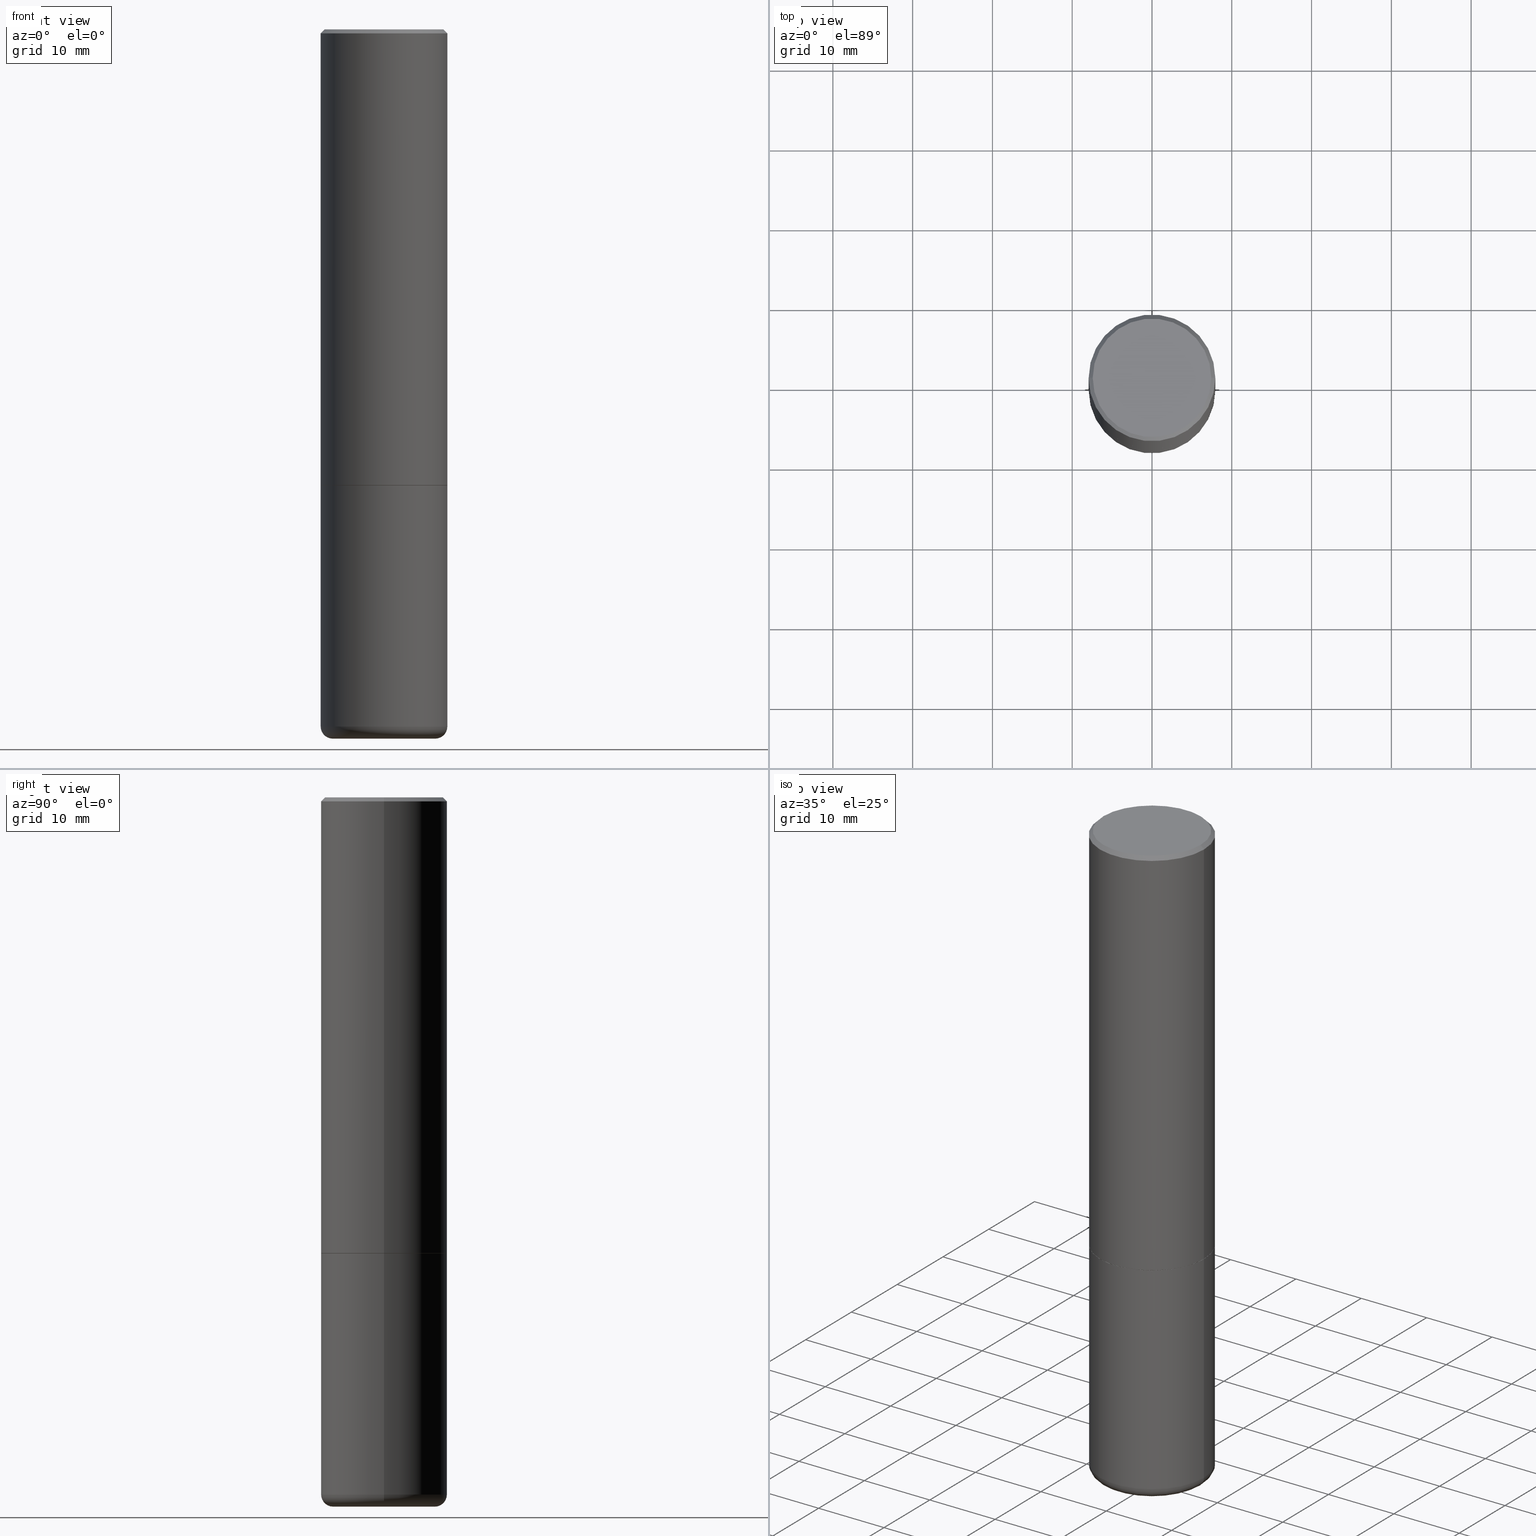
[diagram: canonical four-view strip — front | top / right | iso, engineering-drawing reading convention]
A machine part, canonical four-view strip (front | top / right | iso — engineering-drawing reading convention). The complete STEP part file that produces these views, byte-faithful:
ISO-10303-21;
HEADER;
FILE_DESCRIPTION (( 'STEP AP203' ),
    '1' );
FILE_NAME ('37084.STEP',
    '2024-03-01T19:50:50',
    ( '' ),
    ( '' ),
    'SwSTEP 2.0',
    'SolidWorks 2023',
    '' );
FILE_SCHEMA (( 'CONFIG_CONTROL_DESIGN' ));
ENDSEC;

DATA;
#1 = DIRECTION ( 'NONE',  ( -0.7071067811865957564, 7.493145998870527710E-15, 0.7071067811864992780 ) ) ;
#2 = LOCAL_TIME ( 14, 50, 50.00000000000000000, #113 ) ;
#3 = ORIENTED_EDGE ( 'NONE', *, *, #335, .T. ) ;
#4 = EDGE_CURVE ( 'NONE', #410, #179, #313, .T. ) ;
#5 = CALENDAR_DATE ( 2024, 1, 3 ) ;
#6 = LINE ( 'NONE', #11, #301 ) ;
#7 = PERSON ( 'UNSPECIFIED', 'UNSPECIFIED', 'UNSPECIFIED', ('UNSPECIFIED'), ('UNSPECIFIED'), ('UNSPECIFIED') ) ;
#8 = DIRECTION ( 'NONE',  ( -2.445468806185136597E-29, 3.491481338843145583E-15, 1.000000000000000000 ) ) ;
#9 = CARTESIAN_POINT ( 'NONE',  ( -3.862250233040313002E-45, 5.514269730407654285E-31, 1.579349621337152204E-16 ) ) ;
#10 = DIRECTION ( 'NONE',  ( 1.000000000000000000, -6.982962677686266711E-15, 4.876176775795936353E-29 ) ) ;
#11 = CARTESIAN_POINT ( 'NONE',  ( 0.3125000000000000000, -2.182175836776958347E-15, 1.523805242436230075E-29 ) ) ;
#12 = ADVANCED_FACE ( 'NONE', ( #128 ), #319, .F. ) ;
#13 = VERTEX_POINT ( 'NONE', #121 ) ;
#14 = CC_DESIGN_APPROVAL ( #370, ( #186 ) ) ;
#15 = CARTESIAN_POINT ( 'NONE',  ( 5.499859345110371740E-29, -7.852341531058233864E-15, -2.248999999999999666 ) ) ;
#16 = DIRECTION ( 'NONE',  ( 2.438088387897960049E-29, -3.491481338843145188E-15, -1.000000000000000000 ) ) ;
#17 = FACE_OUTER_BOUND ( 'NONE', #120, .T. ) ;
#18 = LENGTH_MEASURE_WITH_UNIT ( LENGTH_MEASURE( 0.02539999999999999897 ), #109 );
#19 = MANIFOLD_SOLID_BREP ( 'Body-Move/Copy2[2]', #300 ) ;
#20 = AXIS2_PLACEMENT_3D ( 'NONE', #396, #304, #103 ) ;
#21 = VECTOR ( 'NONE', #59, 39.37007874015748143 ) ;
#22 = ADVANCED_FACE ( 'NONE', ( #390 ), #117, .T. ) ;
#23 = CARTESIAN_POINT ( 'NONE',  ( -3.862250233040313002E-45, 5.514269730407654285E-31, 1.579349621337152204E-16 ) ) ;
#24 = CC_DESIGN_PERSON_AND_ORGANIZATION_ASSIGNMENT ( #388, #354, ( #362 ) ) ;
#25 = ORIENTED_EDGE ( 'NONE', *, *, #147, .F. ) ;
#26 = APPROVAL_STATUS ( 'not_yet_approved' ) ;
#27 = ORGANIZATION ( 'UNSPECIFIED', 'UNSPECIFIED', '' ) ;
#28 = EDGE_LOOP ( 'NONE', ( #328, #187, #350, #151 ) ) ;
#29 = CARTESIAN_POINT ( 'NONE',  ( 5.502304813916556222E-29, -7.855833012397076871E-15, -2.249999999999999556 ) ) ;
#30 = COORDINATED_UNIVERSAL_TIME_OFFSET ( 5, 0, .BEHIND. ) ;
#31 = CARTESIAN_POINT ( 'NONE',  ( 5.499859345110371740E-29, -7.852341531058233864E-15, -2.248999999999999666 ) ) ;
#32 = ADVANCED_FACE ( 'NONE', ( #60 ), #363, .T. ) ;
#33 = VERTEX_POINT ( 'NONE', #169 ) ;
#34 = APPROVAL_ROLE ( '' ) ;
#35 = CARTESIAN_POINT ( 'NONE',  ( -0.3114999999999999991, -5.642492390504364798E-15, -2.249999999999999556 ) ) ;
#36 = AXIS2_PLACEMENT_3D ( 'NONE', #9, #93, #292 ) ;
#37 = ORIENTED_EDGE ( 'NONE', *, *, #221, .T. ) ;
#38 = DIRECTION ( 'NONE',  ( 1.000000000000000000, -6.982962677686266711E-15, 4.876176775795936353E-29 ) ) ;
#39 = CARTESIAN_POINT ( 'NONE',  ( 0.000000000000000000, 0.000000000000000000, 0.000000000000000000 ) ) ;
#40 = ADVANCED_FACE ( 'NONE', ( #332 ), #174, .T. ) ;
#41 = CARTESIAN_POINT ( 'NONE',  ( -0.3124999999999998890, 2.112346210000094260E-15, -0.02000000000000006981 ) ) ;
#42 = ORIENTED_EDGE ( 'NONE', *, *, #294, .T. ) ;
#43 = LINE ( 'NONE', #270, #275 ) ;
#44 = CIRCLE ( 'NONE', #52, 0.3125000000000000000 ) ;
#45 = CYLINDRICAL_SURFACE ( 'NONE', #402, 0.3125000000000000000 ) ;
#46 = FACE_OUTER_BOUND ( 'NONE', #286, .T. ) ;
#47 = CARTESIAN_POINT ( 'NONE',  ( 0.000000000000000000, 0.000000000000000000, 0.000000000000000000 ) ) ;
#48 = DIRECTION ( 'NONE',  ( 1.000000000000000000, -6.982962677686269077E-15, 0.000000000000000000 ) ) ;
#49 = PERSON_AND_ORGANIZATION ( #7, #27 ) ;
#50 = ORIENTED_EDGE ( 'NONE', *, *, #335, .F. ) ;
#51 = ORIENTED_EDGE ( 'NONE', *, *, #397, .T. ) ;
#52 = AXIS2_PLACEMENT_3D ( 'NONE', #201, #372, #401 ) ;
#53 = LOCAL_TIME ( 14, 50, 50.00000000000000000, #161 ) ;
#54 = DATE_TIME_ROLE ( 'creation_date' ) ;
#55 = VECTOR ( 'NONE', #1, 39.37007874015748143 ) ;
#56 = DIRECTION ( 'NONE',  ( 1.000000000000000000, -6.982962677686269866E-15, 0.000000000000000000 ) ) ;
#57 = PERSON_AND_ORGANIZATION ( #7, #27 ) ;
#58 = ADVANCED_FACE ( 'NONE', ( #46 ), #45, .T. ) ;
#59 = DIRECTION ( 'NONE',  ( 0.7071067811865957564, -2.468850131082761932E-15, 0.7071067811864992780 ) ) ;
#60 = FACE_OUTER_BOUND ( 'NONE', #165, .T. ) ;
#61 = CARTESIAN_POINT ( 'NONE',  ( 0.000000000000000000, 0.000000000000000000, 0.000000000000000000 ) ) ;
#62 = VERTEX_POINT ( 'NONE', #73 ) ;
#63 = PERSON_AND_ORGANIZATION ( #7, #27 ) ;
#64 = DIRECTION ( 'NONE',  ( -2.445468806185136597E-29, 3.491481338843145583E-15, 1.000000000000000000 ) ) ;
#65 = CONICAL_SURFACE ( 'NONE', #183, 0.3114999999999999991, 0.7853981633975165577 ) ;
#66 = ORIENTED_EDGE ( 'NONE', *, *, #340, .F. ) ;
#67 = ADVANCED_FACE ( 'NONE', ( #269 ), #156, .T. ) ;
#68 = LINE ( 'NONE', #100, #373 ) ;
#69 = ORIENTED_EDGE ( 'NONE', *, *, #231, .F. ) ;
#70 = DIRECTION ( 'NONE',  ( -2.445468806185136597E-29, 3.491481338843145583E-15, 1.000000000000000000 ) ) ;
#71 = FACE_OUTER_BOUND ( 'NONE', #87, .T. ) ;
#72 = DIRECTION ( 'NONE',  ( 1.000000000000000000, -6.982962677686265922E-15, 0.000000000000000000 ) ) ;
#73 = CARTESIAN_POINT ( 'NONE',  ( -0.3125000000000002220, -1.740639529667230767E-15, -2.248999999999999666 ) ) ;
#74 = AXIS2_PLACEMENT_3D ( 'NONE', #61, #64, #38 ) ;
#75 = DIRECTION ( 'NONE',  ( 1.000000000000000000, -6.982962677686265133E-15, 4.873475059489881261E-29 ) ) ;
#76 = CC_DESIGN_PERSON_AND_ORGANIZATION_ASSIGNMENT ( #79, #206, ( #259 ) ) ;
#77 = CARTESIAN_POINT ( 'NONE',  ( 8.559140821647976968E-29, -1.222018468595100934E-14, -3.500000000000000000 ) ) ;
#78 = CC_DESIGN_PERSON_AND_ORGANIZATION_ASSIGNMENT ( #63, #379, ( #186 ) ) ;
#79 = PERSON_AND_ORGANIZATION ( #7, #27 ) ;
#80 = AXIS2_PLACEMENT_3D ( 'NONE', #214, #8, #56 ) ;
#81 = AXIS2_PLACEMENT_3D ( 'NONE', #98, #124, #190 ) ;
#82 = AXIS2_PLACEMENT_3D ( 'NONE', #218, #268, #322 ) ;
#83 = EDGE_LOOP ( 'NONE', ( #411, #213, #321, #85 ) ) ;
#84 = PERSON_AND_ORGANIZATION_ROLE ( 'creator' ) ;
#85 = ORIENTED_EDGE ( 'NONE', *, *, #244, .F. ) ;
#86 = PERSON_AND_ORGANIZATION_ROLE ( 'classification_officer' ) ;
#87 = EDGE_LOOP ( 'NONE', ( #25, #154 ) ) ;
#88 = ADVANCED_FACE ( 'NONE', ( #17 ), #111, .T. ) ;
#89 = CIRCLE ( 'NONE', #290, 0.3114999999999999991 ) ;
#90 = CIRCLE ( 'NONE', #291, 0.3124999999999998890 ) ;
#91 = ORIENTED_EDGE ( 'NONE', *, *, #141, .F. ) ;
#92 = CALENDAR_DATE ( 2024, 1, 3 ) ;
#93 = DIRECTION ( 'NONE',  ( -2.445468806185136597E-29, 3.491481338843145583E-15, 1.000000000000000000 ) ) ;
#94 = ORIENTED_EDGE ( 'NONE', *, *, #147, .T. ) ;
#95 = DATE_TIME_ROLE ( 'classification_date' ) ;
#96 = DIRECTION ( 'NONE',  ( -2.445468806185136597E-29, 3.491481338843145583E-15, 1.000000000000000000 ) ) ;
#97 = EDGE_LOOP ( 'NONE', ( #99, #42, #266, #130 ) ) ;
#98 = CARTESIAN_POINT ( 'NONE',  ( 0.2525000000000000022, -1.377389388173620432E-14, -3.439999999999999947 ) ) ;
#99 = ORIENTED_EDGE ( 'NONE', *, *, #184, .F. ) ;
#100 = CARTESIAN_POINT ( 'NONE',  ( 0.3125000000000000000, -2.182175836776958347E-15, 1.523805242436230075E-29 ) ) ;
#101 = CARTESIAN_POINT ( 'NONE',  ( 4.890937612370289799E-31, -6.982962677686315028E-17, -0.02000000000000006981 ) ) ;
#102 = DIRECTION ( 'NONE',  ( -2.445468806185136597E-29, 3.491481338843145583E-15, 1.000000000000000000 ) ) ;
#103 = DIRECTION ( 'NONE',  ( 1.000000000000000000, -6.982962677686265922E-15, 0.000000000000000000 ) ) ;
#104 = ADVANCED_FACE ( 'NONE', ( #106 ), #235, .T. ) ;
#105 = CARTESIAN_POINT ( 'NONE',  ( 0.000000000000000000, 0.000000000000000000, 0.000000000000000000 ) ) ;
#106 = FACE_OUTER_BOUND ( 'NONE', #359, .T. ) ;
#107 = AXIS2_PLACEMENT_3D ( 'NONE', #31, #327, #153 ) ;
#108 = LINE ( 'NONE', #110, #248 ) ;
#109 =( LENGTH_UNIT ( ) NAMED_UNIT ( * ) SI_UNIT ( $, .METRE. ) );
#110 = CARTESIAN_POINT ( 'NONE',  ( 0.3124999999999998890, -2.213735251080466123E-15, -0.02000000000000006981 ) ) ;
#111 = TOROIDAL_SURFACE ( 'NONE', #215, 0.2525000000000000022, 0.05999999999999995615 ) ;
#112 = CIRCLE ( 'NONE', #352, 0.2924999999999997047 ) ;
#113 = COORDINATED_UNIVERSAL_TIME_OFFSET ( 5, 0, .BEHIND. ) ;
#114 = VERTEX_POINT ( 'NONE', #271 ) ;
#115 = ORIENTED_EDGE ( 'NONE', *, *, #274, .T. ) ;
#116 = ORIENTED_EDGE ( 'NONE', *, *, #176, .F. ) ;
#117 = CONICAL_SURFACE ( 'NONE', #377, 0.3124999999999998890, 0.7853981633974476129 ) ;
#118 = AXIS2_PLACEMENT_3D ( 'NONE', #144, #102, #173 ) ;
#119 = APPROVAL_ROLE ( '' ) ;
#120 = EDGE_LOOP ( 'NONE', ( #384, #280, #196, #250 ) ) ;
#121 = CARTESIAN_POINT ( 'NONE',  ( -0.2924999999999997047, 2.077431396611662611E-15, 1.579349621337007990E-16 ) ) ;
#122 = APPROVAL_DATE_TIME ( #251, #167 ) ;
#123 = CIRCLE ( 'NONE', #243, 0.3124999999999998890 ) ;
#124 = DIRECTION ( 'NONE',  ( -6.982962677686266711E-15, -1.000000000000000000, 3.491481338843145583E-15 ) ) ;
#125 = ORIENTED_EDGE ( 'NONE', *, *, #274, .F. ) ;
#126 = PERSON_AND_ORGANIZATION ( #7, #27 ) ;
#127 = DIRECTION ( 'NONE',  ( -2.445468806185136597E-29, 3.491481338843145583E-15, 1.000000000000000000 ) ) ;
#128 = FACE_OUTER_BOUND ( 'NONE', #211, .T. ) ;
#129 = CARTESIAN_POINT ( 'NONE',  ( 4.890937612370289799E-31, -6.982962677686315028E-17, -0.02000000000000006981 ) ) ;
#130 = ORIENTED_EDGE ( 'NONE', *, *, #265, .F. ) ;
#131 = DIRECTION ( 'NONE',  ( -2.445468806185136597E-29, 3.491481338843145583E-15, 1.000000000000000000 ) ) ;
#132 = CC_DESIGN_APPROVAL ( #167, ( #362 ) ) ;
#133 = ORIENTED_EDGE ( 'NONE', *, *, #351, .F. ) ;
#134 = LINE ( 'NONE', #188, #378 ) ;
#135 = DIRECTION ( 'NONE',  ( -1.000000000000000000, 6.982962677686265922E-15, -4.876176775795935793E-29 ) ) ;
#136 = ADVANCED_FACE ( 'NONE', ( #71 ), #399, .F. ) ;
#137 = FACE_OUTER_BOUND ( 'NONE', #97, .T. ) ;
#138 = DIRECTION ( 'NONE',  ( 1.000000000000000000, -6.982962677686264344E-15, 4.883557194083112340E-29 ) ) ;
#139 =( NAMED_UNIT ( * ) SI_UNIT ( $, .STERADIAN. ) SOLID_ANGLE_UNIT ( ) );
#140 = AXIS2_PLACEMENT_3D ( 'NONE', #164, #70, #398 ) ;
#141 = EDGE_CURVE ( 'NONE', #199, #416, #44, .T. ) ;
#142 = DIRECTION ( 'NONE',  ( 1.000000000000000000, 0.000000000000000000, 0.000000000000000000 ) ) ;
#143 = CARTESIAN_POINT ( 'NONE',  ( 0.000000000000000000, 0.000000000000000000, 0.000000000000000000 ) ) ;
#144 = CARTESIAN_POINT ( 'NONE',  ( 8.412412693276869938E-29, -1.201069580562042103E-14, -3.439999999999999947 ) ) ;
#145 = SECURITY_CLASSIFICATION ( '', '', #193 ) ;
#146 = CC_DESIGN_SECURITY_CLASSIFICATION ( #145, ( #186 ) ) ;
#147 = EDGE_CURVE ( 'NONE', #230, #260, #89, .T. ) ;
#148 = MANIFOLD_SOLID_BREP ( 'Body-Move/Copy2[1]', #323 ) ;
#149 = AXIS2_PLACEMENT_3D ( 'NONE', #404, #306, #371 ) ;
#150 = VERTEX_POINT ( 'NONE', #198 ) ;
#151 = ORIENTED_EDGE ( 'NONE', *, *, #249, .F. ) ;
#152 = COORDINATED_UNIVERSAL_TIME_OFFSET ( 5, 0, .BEHIND. ) ;
#153 = DIRECTION ( 'NONE',  ( 1.000000000000000000, -6.982962677686266711E-15, 0.000000000000000000 ) ) ;
#154 = ORIENTED_EDGE ( 'NONE', *, *, #294, .F. ) ;
#155 = DATE_AND_TIME ( #326, #53 ) ;
#156 = CONICAL_SURFACE ( 'NONE', #20, 0.3114999999999999991, 0.7853981633975165577 ) ;
#157 = CC_DESIGN_APPROVAL ( #202, ( #145 ) ) ;
#158 = DIRECTION ( 'NONE',  ( -2.445468806185136877E-29, 3.491481338843145188E-15, 1.000000000000000000 ) ) ;
#159 = EDGE_LOOP ( 'NONE', ( #50, #353, #247, #296 ) ) ;
#160 = CC_DESIGN_PERSON_AND_ORGANIZATION_ASSIGNMENT ( #126, #84, ( #186 ) ) ;
#161 = COORDINATED_UNIVERSAL_TIME_OFFSET ( 5, 0, .BEHIND. ) ;
#162 = FACE_OUTER_BOUND ( 'NONE', #83, .T. ) ;
#163 = DIRECTION ( 'NONE',  ( -2.445468806185136597E-29, 3.491481338843145583E-15, 1.000000000000000000 ) ) ;
#164 = CARTESIAN_POINT ( 'NONE',  ( 8.412412693276869938E-29, -1.201069580562042103E-14, -3.439999999999999947 ) ) ;
#165 = EDGE_LOOP ( 'NONE', ( #51, #37, #133, #299 ) ) ;
#166 = CARTESIAN_POINT ( 'NONE',  ( 0.3114999999999999991, -1.003102588649634920E-14, -2.249999999999999556 ) ) ;
#167 = APPROVAL ( #253, 'UNSPECIFIED' ) ;
#168 = AXIS2_PLACEMENT_3D ( 'NONE', #374, #171, #376 ) ;
#169 = CARTESIAN_POINT ( 'NONE',  ( 0.3125000000000002220, -1.003451736783519379E-14, -2.248999999999999666 ) ) ;
#170 = DIRECTION ( 'NONE',  ( -1.000000000000000000, 6.982962677686266711E-15, 0.000000000000000000 ) ) ;
#171 = DIRECTION ( 'NONE',  ( -2.445468806185136597E-29, 3.491481338843145583E-15, 1.000000000000000000 ) ) ;
#172 = DIRECTION ( 'NONE',  ( 1.000000000000000000, -6.982962677686265922E-15, 4.876176775795935793E-29 ) ) ;
#173 = DIRECTION ( 'NONE',  ( 1.000000000000000000, -6.982962677686269077E-15, 0.000000000000000000 ) ) ;
#174 = CONICAL_SURFACE ( 'NONE', #255, 0.3124999999999998890, 0.7853981633974476129 ) ;
#175 = VECTOR ( 'NONE', #386, 39.37007874015748143 ) ;
#176 = EDGE_CURVE ( 'NONE', #33, #62, #346, .T. ) ;
#177 =( NAMED_UNIT ( * ) PLANE_ANGLE_UNIT ( ) SI_UNIT ( $, .RADIAN. ) );
#178 = CARTESIAN_POINT ( 'NONE',  ( 0.3124999999999998890, -2.213735251080466123E-15, -0.02000000000000006981 ) ) ;
#179 = VERTEX_POINT ( 'NONE', #302 ) ;
#180 = DESIGN_CONTEXT ( 'detailed design', #367, 'design' ) ;
#181 = EDGE_CURVE ( 'NONE', #13, #252, #134, .T. ) ;
#182 = ORIENTED_EDGE ( 'NONE', *, *, #4, .F. ) ;
#183 = AXIS2_PLACEMENT_3D ( 'NONE', #400, #312, #72 ) ;
#184 = EDGE_CURVE ( 'NONE', #260, #62, #331, .T. ) ;
#185 = COORDINATED_UNIVERSAL_TIME_OFFSET ( 5, 0, .BEHIND. ) ;
#186 = PRODUCT_DEFINITION_FORMATION_WITH_SPECIFIED_SOURCE ( 'ANY', '', #259, .NOT_KNOWN. ) ;
#187 = ORIENTED_EDGE ( 'NONE', *, *, #4, .T. ) ;
#188 = CARTESIAN_POINT ( 'NONE',  ( -0.3124999999999998890, 2.112346210000094260E-15, -0.02000000000000006981 ) ) ;
#189 = EDGE_LOOP ( 'NONE', ( #94, #293, #116, #281 ) ) ;
#190 = DIRECTION ( 'NONE',  ( 1.000000000000000000, -6.982962677686274599E-15, 0.000000000000000000 ) ) ;
#191 = ADVANCED_FACE ( 'NONE', ( #162 ), #200, .T. ) ;
#192 = ORIENTED_EDGE ( 'NONE', *, *, #244, .T. ) ;
#193 = SECURITY_CLASSIFICATION_LEVEL ( 'unclassified' ) ;
#194 = CIRCLE ( 'NONE', #36, 0.2924999999999997047 ) ;
#195 = LINE ( 'NONE', #166, #21 ) ;
#196 = ORIENTED_EDGE ( 'NONE', *, *, #397, .F. ) ;
#197 = DIMENSIONAL_EXPONENTS ( 1.000000000000000000, 0.000000000000000000, 0.000000000000000000, 0.000000000000000000, 0.000000000000000000, 0.000000000000000000, 0.000000000000000000 ) ;
#198 = CARTESIAN_POINT ( 'NONE',  ( 0.3125000000000000000, -1.419287164239737937E-14, -3.439999999999999947 ) ) ;
#199 = VERTEX_POINT ( 'NONE', #394 ) ;
#200 = CYLINDRICAL_SURFACE ( 'NONE', #74, 0.3125000000000000000 ) ;
#201 = CARTESIAN_POINT ( 'NONE',  ( 5.502304813916556222E-29, -7.855833012397076871E-15, -2.249999999999999556 ) ) ;
#202 = APPROVAL ( #216, 'UNSPECIFIED' ) ;
#203 = LOCAL_TIME ( 14, 50, 50.00000000000000000, #185 ) ;
#204 = CARTESIAN_POINT ( 'NONE',  ( 5.502304813916556222E-29, -7.855833012397076871E-15, -2.249999999999999556 ) ) ;
#205 = DIRECTION ( 'NONE',  ( 0.000000000000000000, 0.000000000000000000, 1.000000000000000000 ) ) ;
#206 = PERSON_AND_ORGANIZATION_ROLE ( 'design_owner' ) ;
#207 = APPLICATION_PROTOCOL_DEFINITION ( 'international standard', 'config_control_design', 1994, #367 ) ;
#208 = EDGE_CURVE ( 'NONE', #62, #252, #43, .T. ) ;
#209 = AXIS2_PLACEMENT_3D ( 'NONE', #29, #287, #418 ) ;
#210 = AXIS2_PLACEMENT_3D ( 'NONE', #15, #96, #391 ) ;
#211 = EDGE_LOOP ( 'NONE', ( #345, #223 ) ) ;
#212 = APPROVAL_DATE_TIME ( #155, #202 ) ;
#213 = ORIENTED_EDGE ( 'NONE', *, *, #208, .T. ) ;
#214 = CARTESIAN_POINT ( 'NONE',  ( 8.559140821647976968E-29, -1.222018468595100934E-14, -3.500000000000000000 ) ) ;
#215 = AXIS2_PLACEMENT_3D ( 'NONE', #336, #369, #138 ) ;
#216 = APPROVAL_STATUS ( 'not_yet_approved' ) ;
#217 = CIRCLE ( 'NONE', #149, 0.05999999999999994227 ) ;
#218 = CARTESIAN_POINT ( 'NONE',  ( 2.042516583223230567E-15, 0.2924999999999997047, -9.422908105447613343E-16 ) ) ;
#219 = EDGE_LOOP ( 'NONE', ( #66, #69, #392, #115 ) ) ;
#220 = DATE_AND_TIME ( #285, #333 ) ;
#221 = EDGE_CURVE ( 'NONE', #114, #199, #329, .T. ) ;
#222 = FACE_OUTER_BOUND ( 'NONE', #414, .T. ) ;
#223 = ORIENTED_EDGE ( 'NONE', *, *, #141, .T. ) ;
#224 = APPROVAL_ROLE ( '' ) ;
#225 = PRODUCT_RELATED_PRODUCT_CATEGORY ( 'detail', '', ( #259 ) ) ;
#226 = DIRECTION ( 'NONE',  ( 1.000000000000000000, -6.982962677686269866E-15, 0.000000000000000000 ) ) ;
#227 = DIRECTION ( 'NONE',  ( -1.000000000000000000, 6.982962677686266711E-15, 0.000000000000000000 ) ) ;
#228 = CIRCLE ( 'NONE', #364, 0.3125000000000000000 ) ;
#229 = CARTESIAN_POINT ( 'NONE',  ( 5.502304813916556222E-29, -7.855833012397076871E-15, -2.249999999999999556 ) ) ;
#230 = VERTEX_POINT ( 'NONE', #355 ) ;
#231 = EDGE_CURVE ( 'NONE', #13, #324, #194, .T. ) ;
#232 = DIRECTION ( 'NONE',  ( -2.445468806185136877E-29, 3.491481338843145188E-15, 1.000000000000000000 ) ) ;
#233 = DIRECTION ( 'NONE',  ( -2.445468806185136597E-29, 3.491481338843145583E-15, 1.000000000000000000 ) ) ;
#234 = DIRECTION ( 'NONE',  ( -2.445468806185136597E-29, 3.491481338843145583E-15, 1.000000000000000000 ) ) ;
#235 = PLANE ( 'NONE',  #236 ) ;
#236 = AXIS2_PLACEMENT_3D ( 'NONE', #77, #16, #135 ) ;
#237 = CIRCLE ( 'NONE', #118, 0.3125000000000000000 ) ;
#238 = DIRECTION ( 'NONE',  ( 2.445468806185136597E-29, -3.491481338843145583E-15, -1.000000000000000000 ) ) ;
#239 = APPLICATION_PROTOCOL_DEFINITION ( 'international standard', 'config_control_design', 1994, #297 ) ;
#240 = ADVANCED_FACE ( 'NONE', ( #222 ), #320, .F. ) ;
#241 =( CONVERSION_BASED_UNIT ( 'INCH', #18 ) LENGTH_UNIT ( ) NAMED_UNIT ( #197 ) );
#242 = FACE_OUTER_BOUND ( 'NONE', #28, .T. ) ;
#243 = AXIS2_PLACEMENT_3D ( 'NONE', #129, #358, #288 ) ;
#244 = EDGE_CURVE ( 'NONE', #33, #387, #6, .T. ) ;
#245 = DATE_AND_TIME ( #417, #2 ) ;
#246 = ORIENTED_EDGE ( 'NONE', *, *, #249, .T. ) ;
#247 = ORIENTED_EDGE ( 'NONE', *, *, #315, .T. ) ;
#248 = VECTOR ( 'NONE', #343, 39.37007874015748854 ) ;
#249 = EDGE_CURVE ( 'NONE', #114, #150, #403, .T. ) ;
#250 = ORIENTED_EDGE ( 'NONE', *, *, #282, .F. ) ;
#251 = DATE_AND_TIME ( #5, #317 ) ;
#252 = VERTEX_POINT ( 'NONE', #41 ) ;
#253 = APPROVAL_STATUS ( 'not_yet_approved' ) ;
#254 = CARTESIAN_POINT ( 'NONE',  ( 4.890937612370289799E-31, -6.982962677686315028E-17, -0.02000000000000006981 ) ) ;
#255 = AXIS2_PLACEMENT_3D ( 'NONE', #101, #238, #170 ) ;
#256 = EDGE_CURVE ( 'NONE', #230, #33, #195, .T. ) ;
#257 = APPROVAL_PERSON_ORGANIZATION ( #408, #202, #119 ) ;
#258 = CARTESIAN_POINT ( 'NONE',  ( -0.3125000000000000000, 2.220446049250313081E-15, -1.537167215704658232E-29 ) ) ;
#259 = PRODUCT ( '37084', '37084', '', ( #309 ) ) ;
#260 = VERTEX_POINT ( 'NONE', #295 ) ;
#261 = DATE_AND_TIME ( #92, #203 ) ;
#262 = DIRECTION ( 'NONE',  ( 1.000000000000000000, -6.982962677686265922E-15, 0.000000000000000000 ) ) ;
#263 = ORIENTED_EDGE ( 'NONE', *, *, #265, .T. ) ;
#264 = DIRECTION ( 'NONE',  ( -0.7071067811865469066, 2.468850131082251144E-15, -0.7071067811865479058 ) ) ;
#265 = EDGE_CURVE ( 'NONE', #62, #33, #407, .T. ) ;
#266 = ORIENTED_EDGE ( 'NONE', *, *, #256, .T. ) ;
#267 = APPROVAL_PERSON_ORGANIZATION ( #49, #167, #224 ) ;
#268 = DIRECTION ( 'NONE',  ( 2.438088387897960049E-29, -3.491481338843145188E-15, -1.000000000000000000 ) ) ;
#269 = FACE_OUTER_BOUND ( 'NONE', #189, .T. ) ;
#270 = CARTESIAN_POINT ( 'NONE',  ( -0.3125000000000000000, 2.220446049250313081E-15, -1.537167215704658232E-29 ) ) ;
#271 = CARTESIAN_POINT ( 'NONE',  ( -0.3125000000000000000, -9.790249756370107944E-15, -3.439999999999999947 ) ) ;
#272 = CARTESIAN_POINT ( 'NONE',  ( -0.2525000000000000022, -1.010815701726343156E-14, -3.500000000000000000 ) ) ;
#273 = CARTESIAN_POINT ( 'NONE',  ( 5.502304813916556222E-29, -7.855833012397076871E-15, -2.249999999999999556 ) ) ;
#274 = EDGE_CURVE ( 'NONE', #252, #387, #123, .T. ) ;
#275 = VECTOR ( 'NONE', #158, 39.37007874015748143 ) ;
#276 = CIRCLE ( 'NONE', #381, 0.2525000000000000022 ) ;
#277 = FACE_OUTER_BOUND ( 'NONE', #289, .T. ) ;
#278 = DIRECTION ( 'NONE',  ( -2.445468806185136597E-29, 3.491481338843145583E-15, 1.000000000000000000 ) ) ;
#279 = APPROVAL_PERSON_ORGANIZATION ( #415, #370, #34 ) ;
#280 = ORIENTED_EDGE ( 'NONE', *, *, #409, .T. ) ;
#281 = ORIENTED_EDGE ( 'NONE', *, *, #256, .F. ) ;
#282 = EDGE_CURVE ( 'NONE', #179, #150, #393, .T. ) ;
#283 = AXIS2_PLACEMENT_3D ( 'NONE', #273, #307, #172 ) ;
#284 = AXIS2_PLACEMENT_3D ( 'NONE', #105, #334, #405 ) ;
#285 = CALENDAR_DATE ( 2024, 1, 3 ) ;
#286 = EDGE_LOOP ( 'NONE', ( #344, #246, #366, #91 ) ) ;
#287 = DIRECTION ( 'NONE',  ( 2.438088387897960049E-29, -3.491481338843145188E-15, -1.000000000000000000 ) ) ;
#288 = DIRECTION ( 'NONE',  ( 1.000000000000000000, -6.982962677686266711E-15, 0.000000000000000000 ) ) ;
#289 = EDGE_LOOP ( 'NONE', ( #330, #263, #192, #125 ) ) ;
#290 = AXIS2_PLACEMENT_3D ( 'NONE', #204, #375, #338 ) ;
#291 = AXIS2_PLACEMENT_3D ( 'NONE', #365, #131, #361 ) ;
#292 = DIRECTION ( 'NONE',  ( 1.000000000000000000, -6.982962677686265133E-15, 4.873475059489881261E-29 ) ) ;
#293 = ORIENTED_EDGE ( 'NONE', *, *, #184, .T. ) ;
#294 = EDGE_CURVE ( 'NONE', #260, #230, #413, .T. ) ;
#295 = CARTESIAN_POINT ( 'NONE',  ( -0.3114999999999999991, -5.637193936156142396E-15, -2.249999999999999556 ) ) ;
#296 = ORIENTED_EDGE ( 'NONE', *, *, #181, .F. ) ;
#297 = APPLICATION_CONTEXT ( 'configuration controlled 3d designs of mechanical parts and assemblies' ) ;
#298 = CARTESIAN_POINT ( 'NONE',  ( 8.559140821647976968E-29, -1.222018468595100934E-14, -3.500000000000000000 ) ) ;
#299 = ORIENTED_EDGE ( 'NONE', *, *, #318, .F. ) ;
#300 = CLOSED_SHELL ( 'NONE', ( #67, #191, #40, #22, #412, #380, #136, #240 ) ) ;
#301 = VECTOR ( 'NONE', #232, 39.37007874015748143 ) ;
#302 = CARTESIAN_POINT ( 'NONE',  ( 0.2525000000000000022, -1.398338276206679106E-14, -3.500000000000000000 ) ) ;
#303 = DIRECTION ( 'NONE',  ( 1.000000000000000000, -6.982962677686266711E-15, 4.876176775795936353E-29 ) ) ;
#304 = DIRECTION ( 'NONE',  ( -2.445468806185136597E-29, 3.491481338843145583E-15, 1.000000000000000000 ) ) ;
#305 = EDGE_CURVE ( 'NONE', #179, #410, #276, .T. ) ;
#306 = DIRECTION ( 'NONE',  ( 7.105427357601001859E-15, 1.000000000000000000, -3.491481338843145583E-15 ) ) ;
#307 = DIRECTION ( 'NONE',  ( -2.438088387897960049E-29, 3.491481338843145188E-15, 1.000000000000000000 ) ) ;
#308 = TOROIDAL_SURFACE ( 'NONE', #168, 0.2525000000000000022, 0.05999999999999995615 ) ;
#309 = MECHANICAL_CONTEXT ( 'NONE', #297, 'mechanical' ) ;
#310 = CARTESIAN_POINT ( 'NONE',  ( 0.2924999999999997047, -2.110215457714317959E-15, 1.579349621337297404E-16 ) ) ;
#311 = UNCERTAINTY_MEASURE_WITH_UNIT (LENGTH_MEASURE( 1.000000000000000082E-05 ), #241, 'distance_accuracy_value', 'NONE');
#312 = DIRECTION ( 'NONE',  ( -2.445468806185136597E-29, 3.491481338843145583E-15, 1.000000000000000000 ) ) ;
#313 = CIRCLE ( 'NONE', #80, 0.2525000000000000022 ) ;
#314 = ORIENTED_EDGE ( 'NONE', *, *, #231, .T. ) ;
#315 = EDGE_CURVE ( 'NONE', #387, #252, #90, .T. ) ;
#316 = AXIS2_PLACEMENT_3D ( 'NONE', #39, #163, #10 ) ;
#317 = LOCAL_TIME ( 14, 50, 50.00000000000000000, #30 ) ;
#318 = EDGE_CURVE ( 'NONE', #150, #416, #68, .T. ) ;
#319 = PLANE ( 'NONE',  #209 ) ;
#320 = PLANE ( 'NONE',  #82 ) ;
#321 = ORIENTED_EDGE ( 'NONE', *, *, #315, .F. ) ;
#322 = DIRECTION ( 'NONE',  ( -1.000000000000000000, 6.982962677686265922E-15, -4.876176775795935793E-29 ) ) ;
#323 = CLOSED_SHELL ( 'NONE', ( #32, #88, #12, #58, #382, #104 ) ) ;
#324 = VERTEX_POINT ( 'NONE', #310 ) ;
#325 = AXIS2_PLACEMENT_3D ( 'NONE', #229, #127, #262 ) ;
#326 = CALENDAR_DATE ( 2024, 1, 3 ) ;
#327 = DIRECTION ( 'NONE',  ( -2.445468806185136597E-29, 3.491481338843145583E-15, 1.000000000000000000 ) ) ;
#328 = ORIENTED_EDGE ( 'NONE', *, *, #409, .F. ) ;
#329 = LINE ( 'NONE', #258, #175 ) ;
#330 = ORIENTED_EDGE ( 'NONE', *, *, #208, .F. ) ;
#331 = LINE ( 'NONE', #35, #55 ) ;
#332 = FACE_OUTER_BOUND ( 'NONE', #159, .T. ) ;
#333 = LOCAL_TIME ( 14, 50, 50.00000000000000000, #152 ) ;
#334 = DIRECTION ( 'NONE',  ( -2.445468806185136597E-29, 3.491481338843145583E-15, 1.000000000000000000 ) ) ;
#335 = EDGE_CURVE ( 'NONE', #324, #13, #112, .T. ) ;
#336 = CARTESIAN_POINT ( 'NONE',  ( 8.412412693276869938E-29, -1.201069580562042103E-14, -3.439999999999999947 ) ) ;
#337 = CARTESIAN_POINT ( 'NONE',  ( 0.3125000000000000000, -1.003800884917403522E-14, -2.249999999999999556 ) ) ;
#338 = DIRECTION ( 'NONE',  ( 1.000000000000000000, -6.982962677686265922E-15, 0.000000000000000000 ) ) ;
#339 = CARTESIAN_POINT ( 'NONE',  ( 5.502304813916556222E-29, -7.855833012397076871E-15, -2.249999999999999556 ) ) ;
#340 = EDGE_CURVE ( 'NONE', #324, #387, #108, .T. ) ;
#341 =( GEOMETRIC_REPRESENTATION_CONTEXT ( 3 ) GLOBAL_UNCERTAINTY_ASSIGNED_CONTEXT ( ( #311 ) ) GLOBAL_UNIT_ASSIGNED_CONTEXT ( ( #241, #177, #139 ) ) REPRESENTATION_CONTEXT ( 'NONE', 'WORKASPACE' ) );
#342 = CYLINDRICAL_SURFACE ( 'NONE', #284, 0.3125000000000000000 ) ;
#343 = DIRECTION ( 'NONE',  ( 0.7071067811865469066, -7.319954787623252890E-15, -0.7071067811865479058 ) ) ;
#344 = ORIENTED_EDGE ( 'NONE', *, *, #221, .F. ) ;
#345 = ORIENTED_EDGE ( 'NONE', *, *, #351, .T. ) ;
#346 = CIRCLE ( 'NONE', #210, 0.3125000000000002220 ) ;
#347 = CC_DESIGN_DATE_AND_TIME_ASSIGNMENT ( #245, #54, ( #362 ) ) ;
#348 = AXIS2_PLACEMENT_3D ( 'NONE', #143, #205, #142 ) ;
#349 = CC_DESIGN_DATE_AND_TIME_ASSIGNMENT ( #261, #95, ( #145 ) ) ;
#350 = ORIENTED_EDGE ( 'NONE', *, *, #282, .T. ) ;
#351 = EDGE_CURVE ( 'NONE', #416, #199, #228, .T. ) ;
#352 = AXIS2_PLACEMENT_3D ( 'NONE', #23, #234, #75 ) ;
#353 = ORIENTED_EDGE ( 'NONE', *, *, #340, .T. ) ;
#354 = PERSON_AND_ORGANIZATION_ROLE ( 'creator' ) ;
#355 = CARTESIAN_POINT ( 'NONE',  ( 0.3114999999999999991, -1.003102588649634920E-14, -2.249999999999999556 ) ) ;
#356 = DIRECTION ( 'NONE',  ( 2.445468806185136597E-29, -3.491481338843145583E-15, -1.000000000000000000 ) ) ;
#357 = ADVANCED_BREP_SHAPE_REPRESENTATION ( '37084', ( #148, #19, #348 ), #341 ) ;
#358 = DIRECTION ( 'NONE',  ( -2.445468806185136597E-29, 3.491481338843145583E-15, 1.000000000000000000 ) ) ;
#359 = EDGE_LOOP ( 'NONE', ( #385, #182 ) ) ;
#360 = SHAPE_DEFINITION_REPRESENTATION ( #395, #357 ) ;
#361 = DIRECTION ( 'NONE',  ( 1.000000000000000000, -6.982962677686266711E-15, 0.000000000000000000 ) ) ;
#362 = PRODUCT_DEFINITION ( 'UNKNOWN', '', #186, #180 ) ;
#363 = CYLINDRICAL_SURFACE ( 'NONE', #316, 0.3125000000000000000 ) ;
#364 = AXIS2_PLACEMENT_3D ( 'NONE', #339, #278, #48 ) ;
#365 = CARTESIAN_POINT ( 'NONE',  ( 4.890937612370289799E-31, -6.982962677686315028E-17, -0.02000000000000006981 ) ) ;
#366 = ORIENTED_EDGE ( 'NONE', *, *, #318, .T. ) ;
#367 = APPLICATION_CONTEXT ( 'configuration controlled 3d designs of mechanical parts and assemblies' ) ;
#368 = DIRECTION ( 'NONE',  ( -2.445468806185136877E-29, 3.491481338843145188E-15, 1.000000000000000000 ) ) ;
#369 = DIRECTION ( 'NONE',  ( -2.445468806185136597E-29, 3.491481338843145583E-15, 1.000000000000000000 ) ) ;
#370 = APPROVAL ( #26, 'UNSPECIFIED' ) ;
#371 = DIRECTION ( 'NONE',  ( -1.000000000000000000, 7.105427357600997914E-15, 0.000000000000000000 ) ) ;
#372 = DIRECTION ( 'NONE',  ( -2.445468806185136597E-29, 3.491481338843145583E-15, 1.000000000000000000 ) ) ;
#373 = VECTOR ( 'NONE', #368, 39.37007874015748143 ) ;
#374 = CARTESIAN_POINT ( 'NONE',  ( 8.412412693276869938E-29, -1.201069580562042103E-14, -3.439999999999999947 ) ) ;
#375 = DIRECTION ( 'NONE',  ( -2.445468806185136597E-29, 3.491481338843145583E-15, 1.000000000000000000 ) ) ;
#376 = DIRECTION ( 'NONE',  ( 1.000000000000000000, -6.982962677686264344E-15, 4.883557194083112340E-29 ) ) ;
#377 = AXIS2_PLACEMENT_3D ( 'NONE', #254, #356, #227 ) ;
#378 = VECTOR ( 'NONE', #264, 39.37007874015748854 ) ;
#379 = PERSON_AND_ORGANIZATION_ROLE ( 'design_supplier' ) ;
#380 = ADVANCED_FACE ( 'NONE', ( #137 ), #65, .T. ) ;
#381 = AXIS2_PLACEMENT_3D ( 'NONE', #298, #389, #226 ) ;
#382 = ADVANCED_FACE ( 'NONE', ( #242 ), #308, .T. ) ;
#383 = APPROVAL_DATE_TIME ( #220, #370 ) ;
#384 = ORIENTED_EDGE ( 'NONE', *, *, #305, .T. ) ;
#385 = ORIENTED_EDGE ( 'NONE', *, *, #305, .F. ) ;
#386 = DIRECTION ( 'NONE',  ( -2.445468806185136877E-29, 3.491481338843145188E-15, 1.000000000000000000 ) ) ;
#387 = VERTEX_POINT ( 'NONE', #178 ) ;
#388 = PERSON_AND_ORGANIZATION ( #7, #27 ) ;
#389 = DIRECTION ( 'NONE',  ( -2.445468806185136597E-29, 3.491481338843145583E-15, 1.000000000000000000 ) ) ;
#390 = FACE_OUTER_BOUND ( 'NONE', #219, .T. ) ;
#391 = DIRECTION ( 'NONE',  ( 1.000000000000000000, -6.982962677686266711E-15, 0.000000000000000000 ) ) ;
#392 = ORIENTED_EDGE ( 'NONE', *, *, #181, .T. ) ;
#393 = CIRCLE ( 'NONE', #81, 0.05999999999999994227 ) ;
#394 = CARTESIAN_POINT ( 'NONE',  ( -0.3125000000000000000, -7.712818359758435078E-15, -2.249999999999999556 ) ) ;
#395 = PRODUCT_DEFINITION_SHAPE ( 'NONE', 'NONE',  #362 ) ;
#396 = CARTESIAN_POINT ( 'NONE',  ( 5.502304813916556222E-29, -7.855833012397076871E-15, -2.249999999999999556 ) ) ;
#397 = EDGE_CURVE ( 'NONE', #150, #114, #237, .T. ) ;
#398 = DIRECTION ( 'NONE',  ( 1.000000000000000000, -6.982962677686269077E-15, 0.000000000000000000 ) ) ;
#399 = PLANE ( 'NONE',  #283 ) ;
#400 = CARTESIAN_POINT ( 'NONE',  ( 5.502304813916556222E-29, -7.855833012397076871E-15, -2.249999999999999556 ) ) ;
#401 = DIRECTION ( 'NONE',  ( 1.000000000000000000, -6.982962677686269077E-15, 0.000000000000000000 ) ) ;
#402 = AXIS2_PLACEMENT_3D ( 'NONE', #47, #233, #303 ) ;
#403 = CIRCLE ( 'NONE', #140, 0.3125000000000000000 ) ;
#404 = CARTESIAN_POINT ( 'NONE',  ( -0.2525000000000000022, -1.021657539782616686E-14, -3.439999999999999947 ) ) ;
#405 = DIRECTION ( 'NONE',  ( 1.000000000000000000, -6.982962677686266711E-15, 4.876176775795936353E-29 ) ) ;
#406 = CC_DESIGN_PERSON_AND_ORGANIZATION_ASSIGNMENT ( #57, #86, ( #145 ) ) ;
#407 = CIRCLE ( 'NONE', #107, 0.3125000000000002220 ) ;
#408 = PERSON_AND_ORGANIZATION ( #7, #27 ) ;
#409 = EDGE_CURVE ( 'NONE', #410, #114, #217, .T. ) ;
#410 = VERTEX_POINT ( 'NONE', #272 ) ;
#411 = ORIENTED_EDGE ( 'NONE', *, *, #176, .T. ) ;
#412 = ADVANCED_FACE ( 'NONE', ( #277 ), #342, .T. ) ;
#413 = CIRCLE ( 'NONE', #325, 0.3114999999999999991 ) ;
#414 = EDGE_LOOP ( 'NONE', ( #314, #3 ) ) ;
#415 = PERSON_AND_ORGANIZATION ( #7, #27 ) ;
#416 = VERTEX_POINT ( 'NONE', #337 ) ;
#417 = CALENDAR_DATE ( 2024, 1, 3 ) ;
#418 = DIRECTION ( 'NONE',  ( -1.000000000000000000, 6.982962677686265922E-15, -4.876176775795935793E-29 ) ) ;
ENDSEC;
END-ISO-10303-21;
